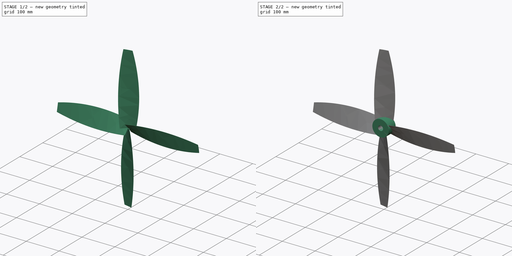
[diagram: build sequence overview — one tinted view per stage of 2, left to right]
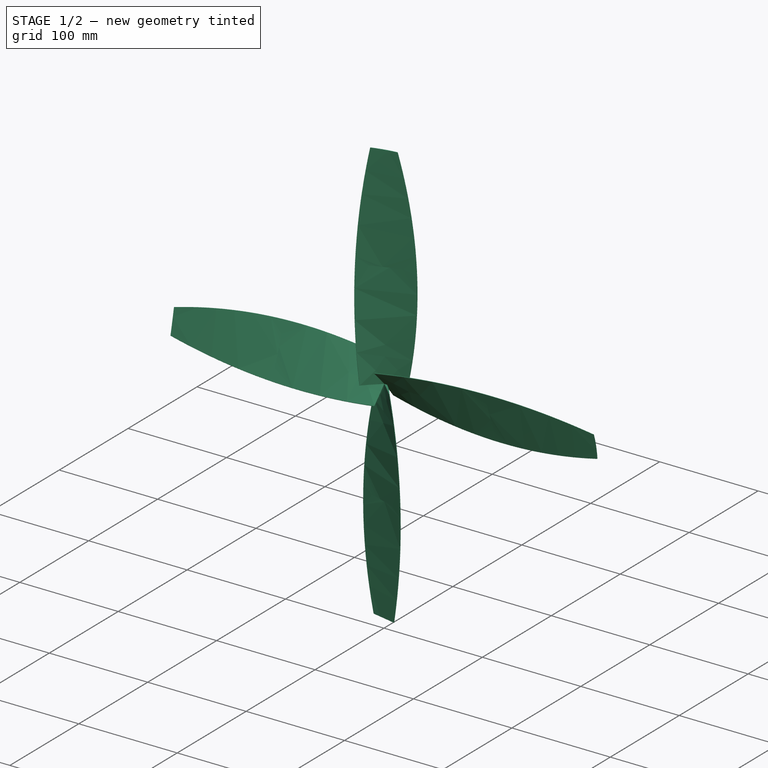
[diagram: stage 1 of 2 — iso view after this stage's code; geometry added in this stage tinted green]
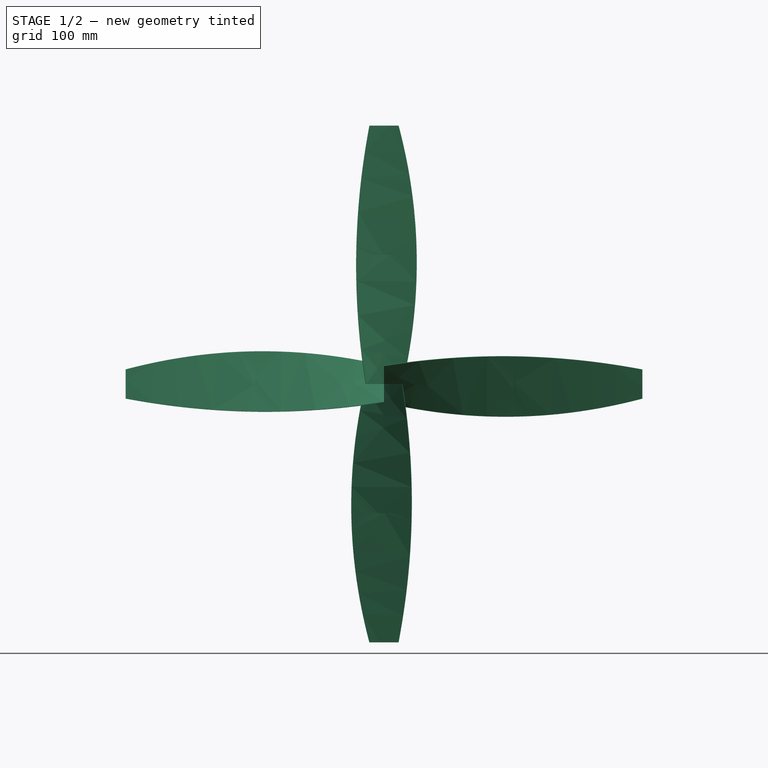
[diagram: stage 1 of 2 — front view after this stage's code; geometry added in this stage tinted green]
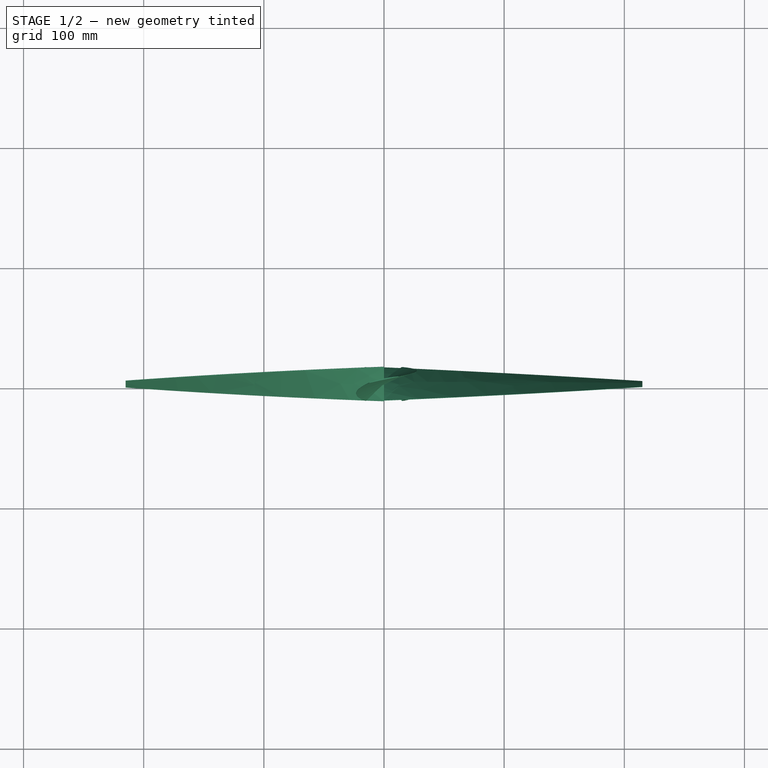
[diagram: stage 1 of 2 — top view after this stage's code; geometry added in this stage tinted green]
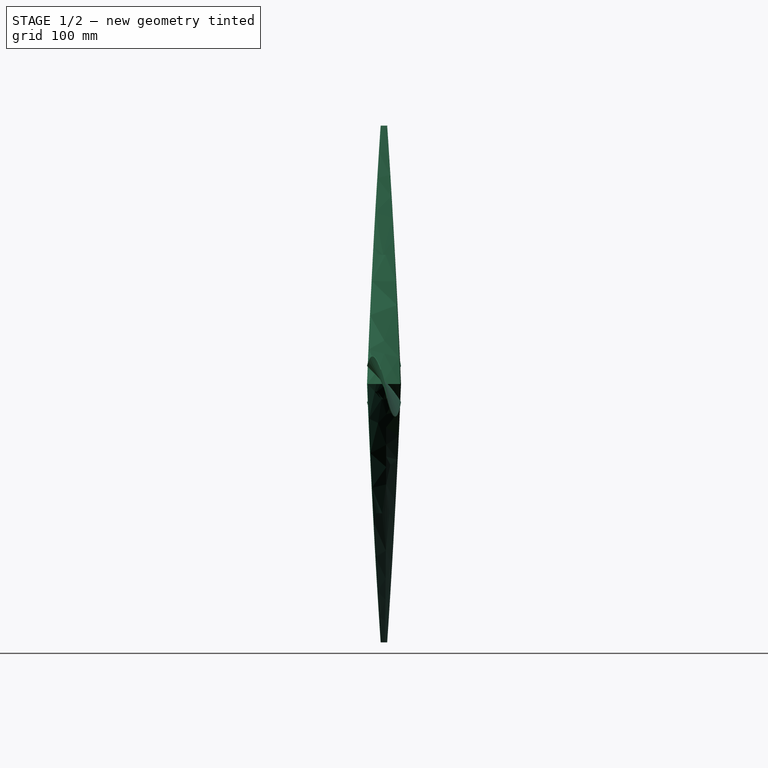
[diagram: stage 1 of 2 — right view after this stage's code; geometry added in this stage tinted green]
FCSTD DOCUMENT  (FreeCAD 0.19R)
Label: propellers
License: All rights reserved
LicenseURL: http://en.wikipedia.org/wiki/All_rights_reserved
objects: Sketcher::SketchObject×8, PartDesign::Plane×3, Spreadsheet::Sheet×3, PartDesign::AdditiveLoft×1, PartDesign::PolarPattern×1, PartDesign::Pad×1, PartDesign::Pocket×1, PartDesign::Body×1
note: 19 computed .brp shape members not serialized (recipe doc carries the construction recipe); baked Part::Feature solids carry a one-line shape summary decoded from their .brp

FEATURE [Sketcher::SketchObject] Sketch
  FullyConstrained = true
  MapMode = 5
  Placement = pos=(0,0,0) rot=(1,0,0;1.5708rad)
  Support = -> [XZ_Plane]
  sketch-geometry (1):
    g0: Circle CenterX=0 CenterY=0 CenterZ=0 NormalX=0 NormalY=0 NormalZ=1 AngleXU=0 Radius=25
  constraints (2):
    c: Coincident(g0,g-1)
    c: Diameter(g0) = 50
FEATURE [PartDesign::Plane] DatumPlane
  AttachmentOffset = pos=(0,0,5) rot=(0,0,1;0rad)
  Length = 60
  MapMode = 3
  Placement = pos=(0,1.1e-15,-5) rot=(1,0,0;3.14159rad)
  ResizeMode = 0
  Support = -> [XZ_Plane]
  Width = 60
FEATURE [Sketcher::SketchObject] Sketch001
  FullyConstrained = true
  MapMode = 5
  Placement = pos=(0,1.1e-15,-5) rot=(1,0,0;3.14159rad)
  Support = -> [DatumPlane]
  sketch-geometry (12):
    g0: LineSegment StartX=0 StartY=0 StartZ=0 EndX=-15 EndY=0 EndZ=0
    g1: LineSegment StartX=0 StartY=0 StartZ=0 EndX=15 EndY=0 EndZ=0
    g2: LineSegment StartX=-15 StartY=0 StartZ=0 EndX=-15 EndY=-13.745 EndZ=0
    g3: LineSegment StartX=15 StartY=0 StartZ=0 EndX=15 EndY=13.745 EndZ=0
    g4: LineSegment StartX=-15 StartY=-13.745 StartZ=0 EndX=-10 EndY=-13.745 EndZ=0
    g5: LineSegment StartX=-15 StartY=-13.745 StartZ=0 EndX=-10.9042 EndY=-10.8771 EndZ=0
    g6: LineSegment StartX=15 StartY=13.745 StartZ=0 EndX=20 EndY=13.745 EndZ=0
    g7: LineSegment StartX=15 StartY=13.745 StartZ=0 EndX=18.2139 EndY=17.5752 EndZ=0
    g8: ArcOfCircle CenterX=-104.404 CenterY=113.936 CenterZ=0 NormalX=0 NormalY=0 NormalZ=1 AngleXU=0 Radius=155.87 StartAngle=5.32325 EndAngle=5.58505
    g9: Circle CenterX=-3.75 CenterY=-5.07785 CenterZ=0 NormalX=0 NormalY=0 NormalZ=1 AngleXU=0 Radius=1
    g10: LineSegment StartX=-3.75 StartY=-5.07785 StartZ=0 EndX=-3.10425 EndY=-5.84139 EndZ=0
    g11: LineSegment StartX=-3.75 StartY=-5.07785 StartZ=0 EndX=-4.39575 EndY=-4.3143 EndZ=0
  constraints (36):
    c: Coincident(g0,g-1)
    c: PointOnObject(g0,g-1)
    c: Distance(g0) = 15  'L'
    c: PointOnObject(g1,g-1)
    c: Equal(g1,g0)
    c: Coincident(g2,g0)
    c: Vertical(g2)
    c: Coincident(g3,g1)
    c: Vertical(g3)
    c: Equal(g3,g2)
    c: Coincident(g4,g2)
    c: Horizontal(g4)
    c: Coincident(g5,g2)
    c: Horizontal(g6)
    c: Coincident(g7,g6)
    c: Coincident(g6,g3)
    c: Distance(g6) = 5
    c: Distance(g7) = 5
    c: Distance(g5) = 5
    c: Distance(g4) = 5
    c: Coincident(g8,g2)
    c: Coincident(g8,g3)
    c: Tangent(g8,g5)
    c: Tangent(g8,g7)
    c: Coincident(g1,g0)
    c: PointOnObject(g9,g8)
    c: PointOnObject(g10,g9)
    c: Coincident(g11,g10)
    c: PointOnObject(g11,g9)
    c: Perpendicular(g8,g11)
    c: Coincident(g10,g9)
    c: Perpendicular(g8,g10)
    c: Diameter(g9) = 2  'Thickness'
    c: DistanceX(g9,g0) = 3.75
    c: Angle(g4,g5) = 0.610865  'Beta 1'
    c: Angle(g6,g7) = 0.872665  'Beta 2'
FEATURE [Spreadsheet::Sheet] Spreadsheet
  cells = A1=Profile Hub; A2=L; B2=Beta 1; C2=Beta 2; D2=Thickness; E2=Leading Edge; F2=Trailing Edge; A3=15; B3=35; C3=50; D3=2; E3=0.5; F3=0.3
FEATURE [Sketcher::SketchObject] Sketch002
  ExternalGeometry = -> [Sketch001]
  FullyConstrained = true
  MapMode = 5
  Placement = pos=(0,1.1e-15,-5) rot=(1,0,0;3.14159rad)
  Support = -> [DatumPlane]
  expr: .Constraints.LE = Spreadsheet.E3
  expr: .Constraints.TE = Spreadsheet.F3
  sketch-geometry (4):
    g0: ArcOfCircle CenterX=-15 CenterY=-13.745 CenterZ=0 NormalX=0 NormalY=0 NormalZ=1 AngleXU=0 Radius=0.5 StartAngle=2.23828 EndAngle=5.26679
    g1: ArcOfCircle CenterX=15 CenterY=13.745 CenterZ=0 NormalX=0 NormalY=0 NormalZ=1 AngleXU=0 Radius=0.3 StartAngle=5.65115 EndAngle=8.66023
    g2: ArcOfCircle CenterX=-196.721 CenterY=216.818 CenterZ=0 NormalX=0 NormalY=0 NormalZ=1 AngleXU=0 Radius=293.067 StartAngle=5.37987 EndAngle=5.51863
    g3: ArcOfCircle CenterX=-71.027 CenterY=76.7373 CenterZ=0 NormalX=0 NormalY=0 NormalZ=1 AngleXU=0 Radius=106.924 StartAngle=5.26681 EndAngle=5.65115
  constraints (14):
    c: Coincident(g0,g-3)
    c: Coincident(g1,g-6)
    c: Coincident(g2,g0)
    c: Coincident(g2,g1)
    c: PointOnObject(g-5,g2)
    c: Coincident(g3,g0)
    c: Coincident(g3,g1)
    c: PointOnObject(g-4,g3)
    c: Tangent(g0,g2)
    c: Tangent(g0,g3)
    c: Tangent(g2,g1)
    c: Tangent(g3,g1)
    c: Radius(g0) = 0.5  'LE'
    c: Radius(g1) = 0.3  'TE'
FEATURE [PartDesign::Plane] DatumPlane001
  AttachmentOffset = pos=(-2,0,110) rot=(0,0,1;0rad)
  Length = 60
  MapMode = 3
  Placement = pos=(-2,2.44e-14,-110) rot=(1,0,0;3.14159rad)
  ResizeMode = 0
  Support = -> [XZ_Plane]
  Width = 60
FEATURE [Spreadsheet::Sheet] Spreadsheet001
  cells = A1=Profile Average; A2=L; B2=Beta 1; C2=Beta 2; D2=Thickness; E2=Leading Edge; F2=Trailing Edge; A3=25; B3=15; C3=25; D3=1.5; E3=0.25; F3=0.15
FEATURE [Sketcher::SketchObject] Sketch003
  FullyConstrained = true
  MapMode = 5
  Placement = pos=(-2,2.44e-14,-110) rot=(1,0,0;3.14159rad)
  Support = -> [DatumPlane001]
  sketch-geometry (12):
    g0: LineSegment StartX=0 StartY=0 StartZ=0 EndX=-25 EndY=0 EndZ=0
    g1: LineSegment StartX=0 StartY=0 StartZ=0 EndX=25 EndY=0 EndZ=0
    g2: LineSegment StartX=-25 StartY=0 StartZ=0 EndX=-25 EndY=-9.09926 EndZ=0
    g3: LineSegment StartX=25 StartY=0 StartZ=0 EndX=25 EndY=9.09926 EndZ=0
    g4: LineSegment StartX=-25 StartY=-9.09926 StartZ=0 EndX=-20 EndY=-9.09926 EndZ=0
    g5: LineSegment StartX=-25 StartY=-9.09926 StartZ=0 EndX=-20.1704 EndY=-7.80516 EndZ=0
    g6: LineSegment StartX=25 StartY=9.09926 StartZ=0 EndX=30 EndY=9.09926 EndZ=0
    g7: LineSegment StartX=25 StartY=9.09926 StartZ=0 EndX=29.5315 EndY=11.2123 EndZ=0
    g8: ArcOfCircle CenterX=-104.005 CenterY=285.752 CenterZ=0 NormalX=0 NormalY=0 NormalZ=1 AngleXU=0 Radius=305.252 StartAngle=4.97419 EndAngle=5.14872
    g9: Circle CenterX=-6.25 CenterY=-3.42443 CenterZ=0 NormalX=0 NormalY=0 NormalZ=1 AngleXU=0 Radius=0.75
    g10: LineSegment StartX=-6.25 StartY=-3.42443 StartZ=0 EndX=-6.00982 EndY=-4.13493 EndZ=0
    g11: LineSegment StartX=-6.25 StartY=-3.42443 StartZ=0 EndX=-6.49018 EndY=-2.71393 EndZ=0
  constraints (36):
    c: Coincident(g0,g-1)
    c: PointOnObject(g0,g-1)
    c: Distance(g0) = 25  'L'
    c: PointOnObject(g1,g-1)
    c: Equal(g1,g0)
    c: Coincident(g2,g0)
    c: Vertical(g2)
    c: Coincident(g3,g1)
    c: Vertical(g3)
    c: Equal(g3,g2)
    c: Coincident(g4,g2)
    c: Horizontal(g4)
    c: Coincident(g5,g2)
    c: Horizontal(g6)
    c: Coincident(g7,g6)
    c: Coincident(g6,g3)
    c: Distance(g6) = 5
    c: Distance(g7) = 5
    c: Distance(g5) = 5
    c: Distance(g4) = 5
    c: Coincident(g8,g2)
    c: Coincident(g8,g3)
    c: Tangent(g8,g5)
    c: Tangent(g8,g7)
    c: Coincident(g1,g0)
    c: PointOnObject(g9,g8)
    c: PointOnObject(g10,g9)
    c: Coincident(g11,g10)
    c: PointOnObject(g11,g9)
    c: Perpendicular(g8,g11)
    c: Coincident(g10,g9)
    c: Perpendicular(g8,g10)
    c: Diameter(g9) = 1.5  'Thickness'
    c: DistanceX(g9,g0) = 6.25
    c: Angle(g4,g5) = 0.261799  'Beta 1 Avg'
    c: Angle(g6,g7) = 0.436332  'Beta 2 Avg'
FEATURE [Sketcher::SketchObject] Sketch004
  ExternalGeometry = -> [Sketch003]
  FullyConstrained = true
  MapMode = 5
  Placement = pos=(-2,2.44e-14,-110) rot=(1,0,0;3.14159rad)
  Support = -> [DatumPlane001]
  sketch-geometry (4):
    g0: ArcOfCircle CenterX=-25 CenterY=-9.09926 CenterZ=0 NormalX=0 NormalY=0 NormalZ=1 AngleXU=0 Radius=0.25 StartAngle=1.87405 EndAngle=4.93281
    g1: ArcOfCircle CenterX=25 CenterY=9.09926 CenterZ=0 NormalX=0 NormalY=0 NormalZ=1 AngleXU=0 Radius=0.15 StartAngle=5.19382 EndAngle=8.24511
    g2: ArcOfCircle CenterX=-205.926 CenterY=569.105 CenterZ=0 NormalX=0 NormalY=0 NormalZ=1 AngleXU=0 Radius=605.6 StartAngle=5.01565 EndAngle=5.10351
    g3: ArcOfCircle CenterX=-69.6784 CenterY=190.317 CenterZ=0 NormalX=0 NormalY=0 NormalZ=1 AngleXU=0 Radius=204.61 StartAngle=4.9328 EndAngle=5.19384
  constraints (14):
    c: Coincident(g0,g-3)
    c: Coincident(g1,g-6)
    c: Coincident(g2,g0)
    c: Coincident(g2,g1)
    c: PointOnObject(g-5,g2)
    c: Coincident(g3,g0)
    c: Coincident(g3,g1)
    c: PointOnObject(g-4,g3)
    c: Tangent(g0,g2)
    c: Tangent(g0,g3)
    c: Tangent(g2,g1)
    c: Tangent(g3,g1)
    c: Radius(g0) = 0.25  'LE Avg'
    c: Radius(g1) = 0.15  'TE Avg'
FEATURE [PartDesign::Plane] DatumPlane002
  AttachmentOffset = pos=(0,0,220) rot=(0,0,1;0rad)
  Length = 60
  MapMode = 3
  Placement = pos=(0,4.88e-14,-220) rot=(1,0,0;3.14159rad)
  ResizeMode = 0
  Support = -> [XZ_Plane]
  Width = 60
FEATURE [Spreadsheet::Sheet] Spreadsheet002
  cells = A1=Profile Shroud; A2=L; B2=Beta 1; C2=Beta 2; D2=Thickness; E2=Leading Edge; F2=Trailing Edge; A3=12; B3=8; C3=16; D3=1; E3=0.2; F3=0.15
FEATURE [Sketcher::SketchObject] Sketch005
  FullyConstrained = true
  MapMode = 5
  Placement = pos=(0,4.88e-14,-220) rot=(1,0,0;3.14159rad)
  Support = -> [DatumPlane002]
  expr: .Constraints.Thickness = Spreadsheet002.D3
  sketch-geometry (12):
    g0: LineSegment StartX=0 StartY=0 StartZ=0 EndX=-12 EndY=0 EndZ=0
    g1: LineSegment StartX=0 StartY=0 StartZ=0 EndX=12 EndY=0 EndZ=0
    g2: LineSegment StartX=-12 StartY=0 StartZ=0 EndX=-12 EndY=-2.55068 EndZ=0
    g3: LineSegment StartX=12 StartY=0 StartZ=0 EndX=12 EndY=2.55068 EndZ=0
    g4: LineSegment StartX=-12 StartY=-2.55068 StartZ=0 EndX=-7 EndY=-2.55068 EndZ=0
    g5: LineSegment StartX=-12 StartY=-2.55068 StartZ=0 EndX=-7.04866 EndY=-1.85482 EndZ=0
    g6: LineSegment StartX=12 StartY=2.55068 StartZ=0 EndX=17 EndY=2.55068 EndZ=0
    g7: LineSegment StartX=12 StartY=2.55068 StartZ=0 EndX=16.8063 EndY=3.92887 EndZ=0
    g8: ArcOfCircle CenterX=-36.4765 CenterY=171.608 CenterZ=0 NormalX=0 NormalY=0 NormalZ=1 AngleXU=0 Radius=175.87 StartAngle=4.85202 EndAngle=4.99164
    g9: Circle CenterX=-3 CenterY=-1.04677 CenterZ=0 NormalX=0 NormalY=0 NormalZ=1 AngleXU=0 Radius=0.5
    g10: LineSegment StartX=-3 StartY=-1.04677 StartZ=0 EndX=-2.90483 EndY=-1.53763 EndZ=0
    g11: LineSegment StartX=-3 StartY=-1.04677 StartZ=0 EndX=-3.09517 EndY=-0.555913 EndZ=0
  constraints (36):
    c: Coincident(g0,g-1)
    c: PointOnObject(g0,g-1)
    c: Distance(g0) = 12  'L'
    c: PointOnObject(g1,g-1)
    c: Equal(g1,g0)
    c: Coincident(g2,g0)
    c: Vertical(g2)
    c: Coincident(g3,g1)
    c: Vertical(g3)
    c: Equal(g3,g2)
    c: Coincident(g4,g2)
    c: Horizontal(g4)
    c: Coincident(g5,g2)
    c: Horizontal(g6)
    c: Coincident(g7,g6)
    c: Coincident(g6,g3)
    c: Distance(g6) = 5
    c: Distance(g7) = 5
    c: Distance(g5) = 5
    c: Distance(g4) = 5
    c: Coincident(g8,g2)
    c: Coincident(g8,g3)
    c: Tangent(g8,g5)
    c: Tangent(g8,g7)
    c: Coincident(g1,g0)
    c: PointOnObject(g9,g8)
    c: PointOnObject(g10,g9)
    c: Coincident(g11,g10)
    c: PointOnObject(g11,g9)
    c: Perpendicular(g8,g11)
    c: Coincident(g10,g9)
    c: Perpendicular(g8,g10)
    c: Diameter(g9) = 1  'Thickness'
    c: DistanceX(g9,g0) = 3
    c: Angle(g4,g5) = 0.139626  'Beta 1 Shroud'
    c: Angle(g6,g7) = 0.279253  'Beta 2 Shroud'
FEATURE [Sketcher::SketchObject] Sketch006
  ExternalGeometry = -> [Sketch005]
  FullyConstrained = true
  MapMode = 5
  Placement = pos=(0,4.88e-14,-220) rot=(1,0,0;3.14159rad)
  Support = -> [DatumPlane002]
  sketch-geometry (4):
    g0: ArcOfCircle CenterX=-12 CenterY=-2.55068 CenterZ=0 NormalX=0 NormalY=0 NormalZ=1 AngleXU=0 Radius=0.2 StartAngle=1.76392 EndAngle=4.79855
    g1: ArcOfCircle CenterX=12 CenterY=2.55068 CenterZ=0 NormalX=0 NormalY=0 NormalZ=1 AngleXU=0 Radius=0.15 StartAngle=5.04913 EndAngle=8.07561
    g2: ArcOfCircle CenterX=-177.32 CenterY=842.664 CenterZ=0 NormalX=0 NormalY=0 NormalZ=1 AngleXU=0 Radius=861.031 StartAngle=4.90555 EndAngle=4.93404
    g3: ArcOfCircle CenterX=-20.4495 CenterY=95.2449 CenterZ=0 NormalX=0 NormalY=0 NormalZ=1 AngleXU=0 Radius=98.36 StartAngle=4.79857 EndAngle=5.04913
  constraints (14):
    c: Coincident(g0,g-3)
    c: Coincident(g1,g-6)
    c: Coincident(g2,g0)
    c: Coincident(g2,g1)
    c: PointOnObject(g-5,g2)
    c: Coincident(g3,g0)
    c: Coincident(g3,g1)
    c: PointOnObject(g-4,g3)
    c: Tangent(g0,g2)
    c: Tangent(g0,g3)
    c: Tangent(g2,g1)
    c: Tangent(g3,g1)
    c: Radius(g0) = 0.2  'LE Shroud'
    c: Radius(g1) = 0.15  'TE Shroud'
FEATURE [PartDesign::AdditiveLoft] AdditiveLoft
  Closed = false
  Placement = pos=(0,1.1e-15,-5) rot=(1,0,0;3.14159rad)
  Profile = -> Sketch002
  Ruled = false
  Sections = -> [Sketch004,Sketch006]
FEATURE [PartDesign::PolarPattern] PolarPattern
  Angle = 360
  Axis = -> Sketch002 [V_Axis]
  BaseFeature = -> AdditiveLoft
  Occurrences = 4
  Originals = -> [AdditiveLoft]
  Placement = pos=(0,1.1e-15,-5) rot=(1,0,0;3.14159rad)
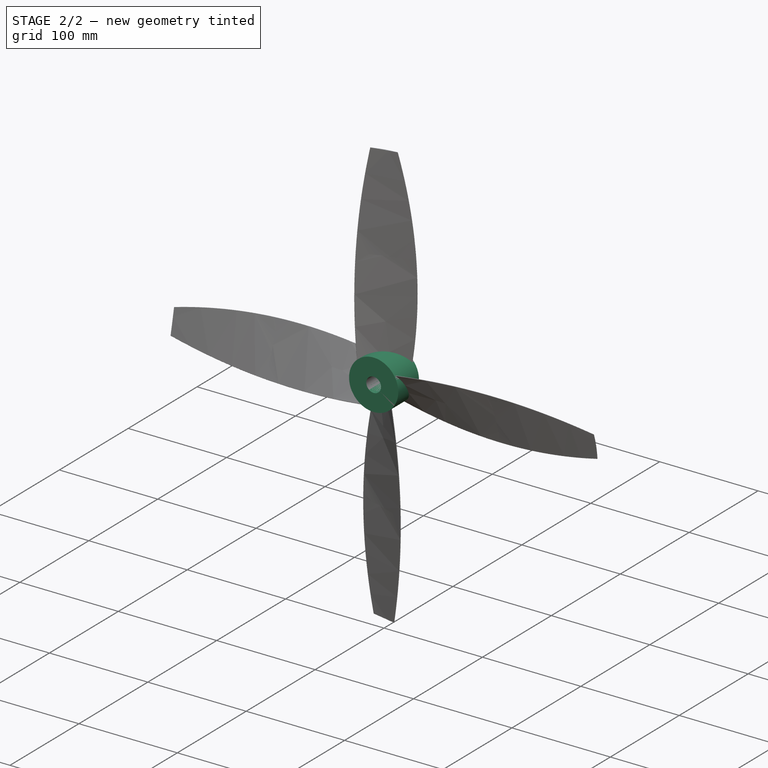
[diagram: stage 2 of 2 — iso view after this stage's code; geometry added in this stage tinted green]
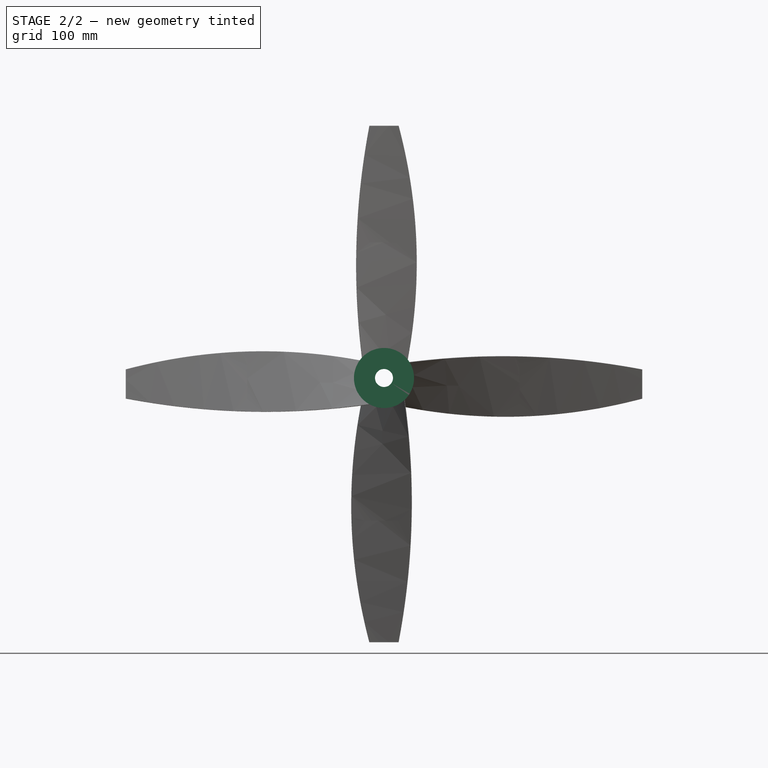
[diagram: stage 2 of 2 — front view after this stage's code; geometry added in this stage tinted green]
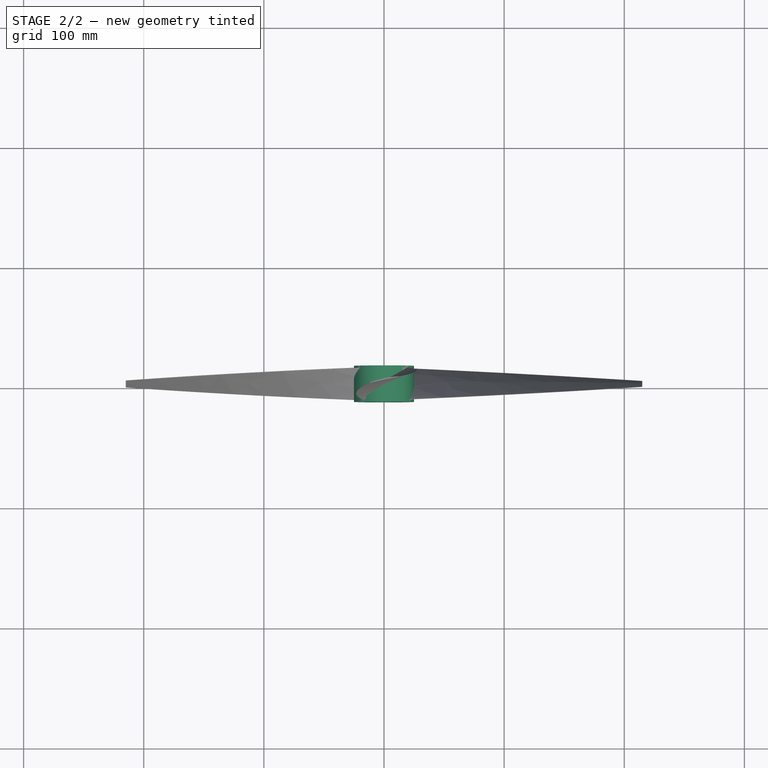
[diagram: stage 2 of 2 — top view after this stage's code; geometry added in this stage tinted green]
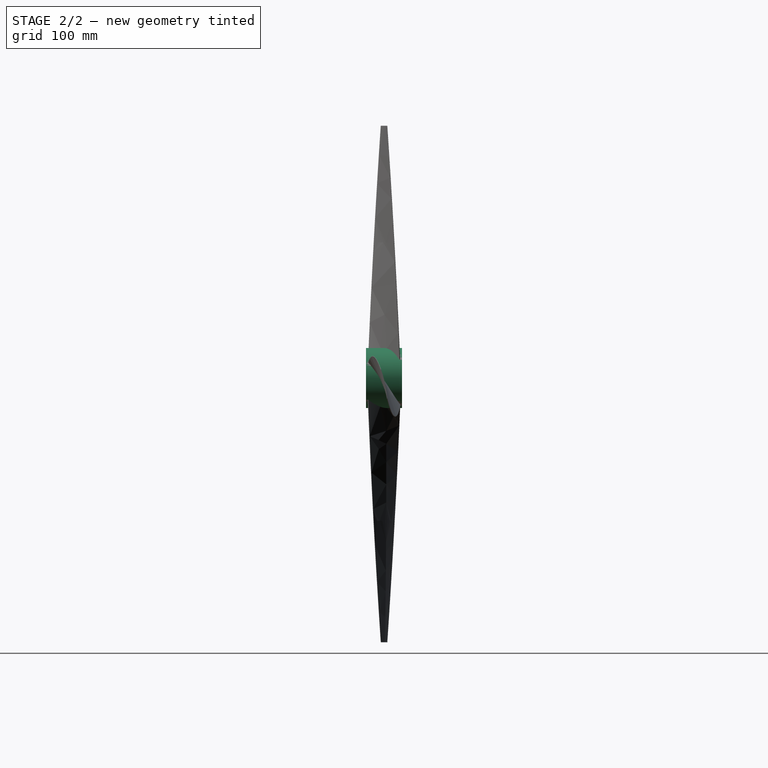
[diagram: stage 2 of 2 — right view after this stage's code; geometry added in this stage tinted green]
FEATURE [PartDesign::Pad] Pad
  BaseFeature = -> PolarPattern
  Direction = (1,1,1)
  Length = 30
  Length2 = 100
  Midplane = true
  Placement = pos=(0,1.1e-15,-5) rot=(1,0,0;3.14159rad)
  Profile = -> Sketch
  Type = 0
FEATURE [Sketcher::SketchObject] Sketch008
  FullyConstrained = true
  MapMode = 5
  Placement = pos=(0,0,0) rot=(1,0,0;1.5708rad)
  Support = -> [XZ_Plane]
  sketch-geometry (1):
    g0: Circle CenterX=0 CenterY=0 CenterZ=0 NormalX=0 NormalY=0 NormalZ=1 AngleXU=0 Radius=7.5
  constraints (2):
    c: Coincident(g0,g-1)
    c: Diameter(g0) = 15
FEATURE [PartDesign::Pocket] Pocket
  BaseFeature = -> Pad
  Length = 5
  Length2 = 100
  Midplane = true
  Placement = pos=(0,1.1e-15,-5) rot=(1,0,0;3.14159rad)
  Profile = -> Sketch008
  Type = 1
FEATURE [PartDesign::Body] Body
  Group = -> [Sketch,DatumPlane,Sketch001,Sketch002,DatumPlane001,Sketch003,Sketch004,DatumPlane002,Sketch005,Sketch006,AdditiveLoft,PolarPattern,Pad,Sketch008,Pocket]
  Origin = -> Origin
  Tip = -> Pocket
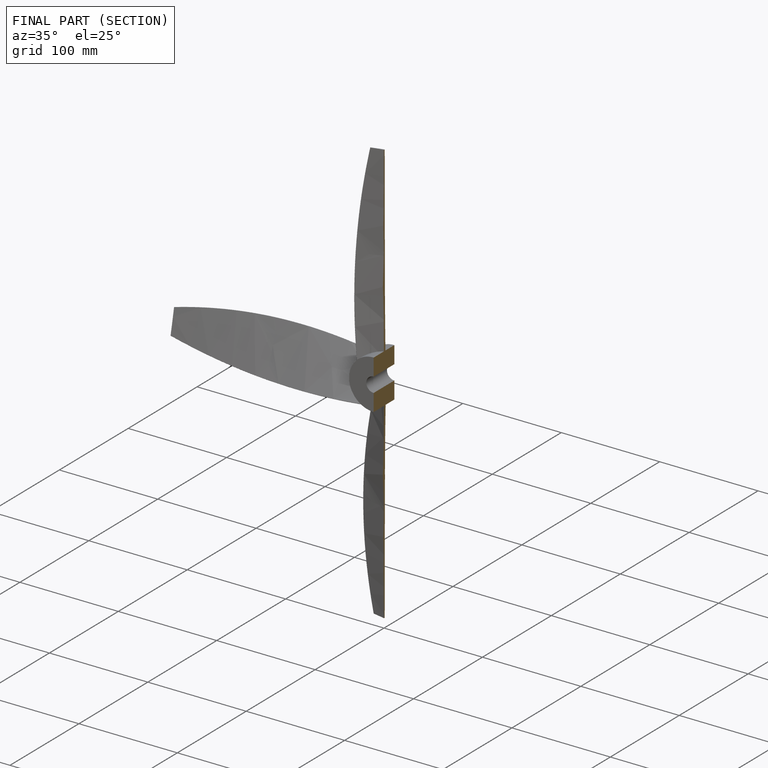
[diagram: finished part — half-section view (interior)]
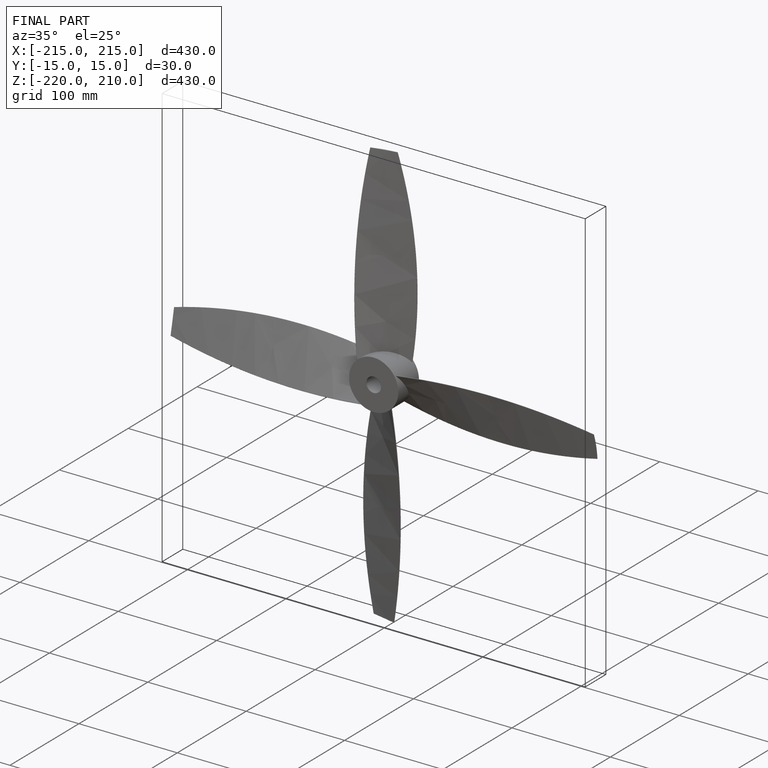
[diagram: finished part — iso view with bounding-box wireframe]
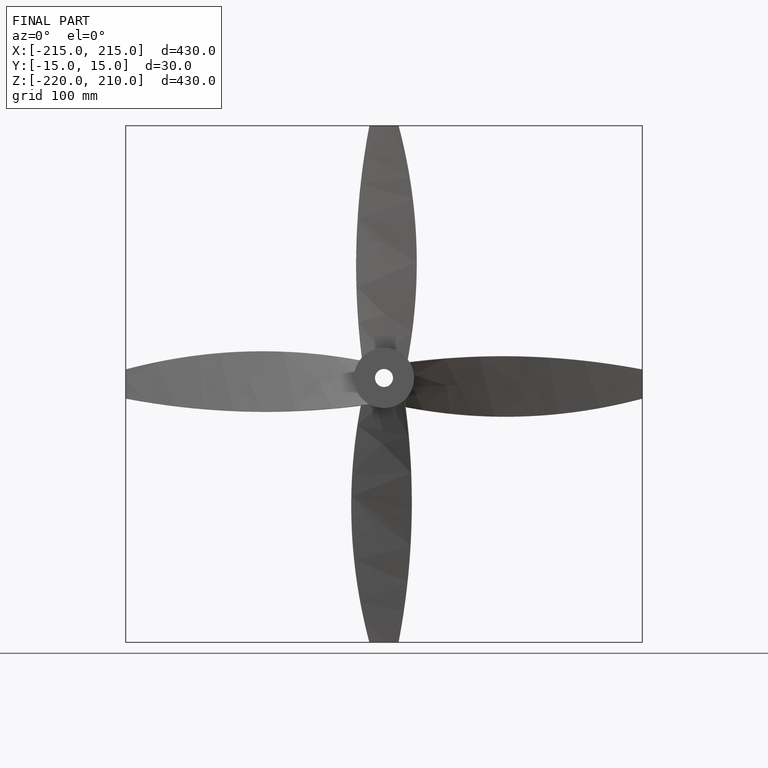
[diagram: finished part — front view with bounding-box wireframe]
